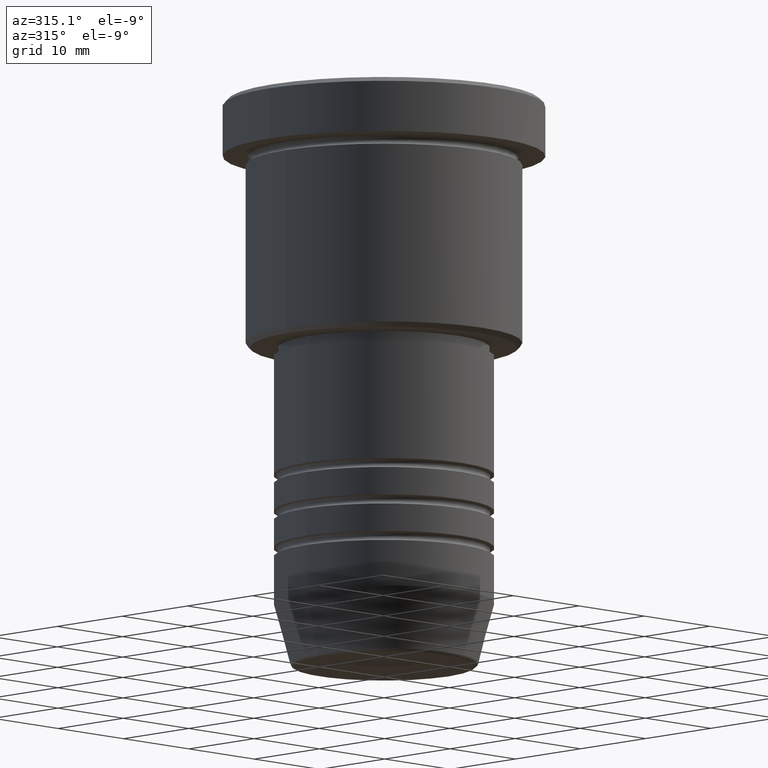
[diagram: clean part render]
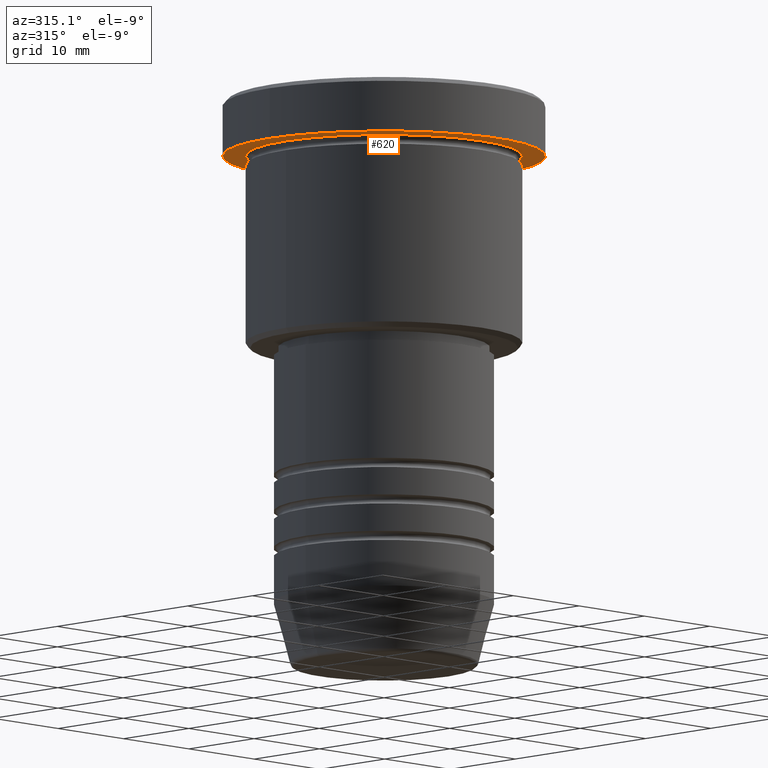
[diagram: same view with one face highlighted and labeled with its STEP entity id]
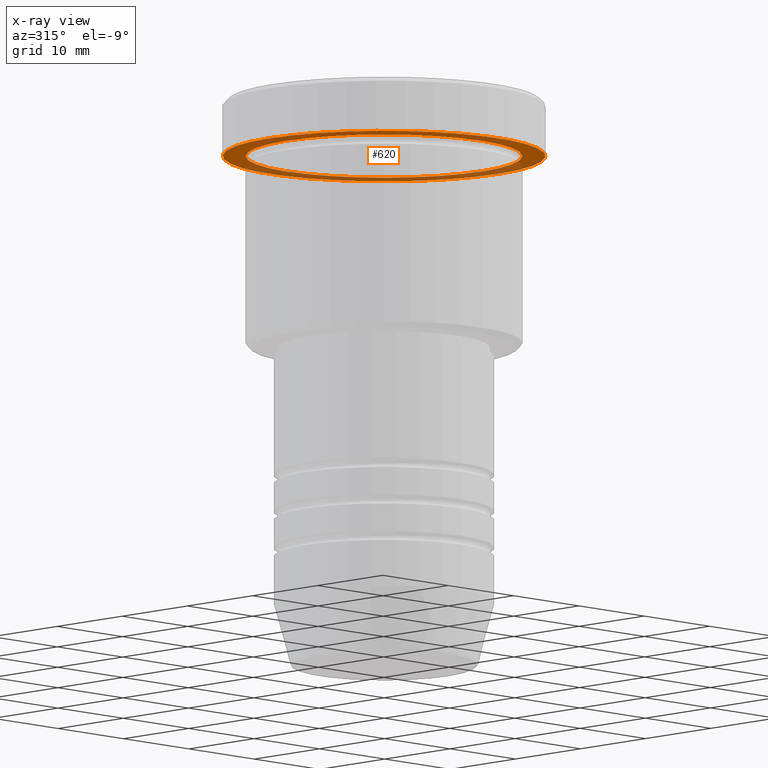
[diagram: x-ray of the same camera — body ghosted, the highlighted face saturated]
A machine part, auxiliary view. The second image highlights one B-rep face of the part: STEP entity #620.
The next image is the same camera in x-ray: the body ghosted, the highlighted face saturated — about 37% of this face is hidden behind the body in this view.
In plain terms, the highlighted planar face has unit normal (0, 0, -1).
Its self-contained STEP definition (entity closure, byte-faithful):
#2 = VERTEX_POINT ( 'NONE', #239 ) ;
#6 = AXIS2_PLACEMENT_3D ( 'NONE', #645, #1023, #465 ) ;
#17 = FACE_BOUND ( 'NONE', #987, .T. ) ;
#24 = CARTESIAN_POINT ( 'NONE',  ( 17.50000000000000000, 0.000000000000000000, -5.999999999999995559 ) ) ;
#48 = DIRECTION ( 'NONE',  ( 1.000000000000000000, 0.000000000000000000, 0.000000000000000000 ) ) ;
#50 = ORIENTED_EDGE ( 'NONE', *, *, #947, .F. ) ;
#104 = AXIS2_PLACEMENT_3D ( 'NONE', #1020, #217, #1126 ) ;
#115 = EDGE_LOOP ( 'NONE', ( #393, #50 ) ) ;
#116 = EDGE_CURVE ( 'NONE', #157, #814, #264, .T. ) ;
#127 = CARTESIAN_POINT ( 'NONE',  ( -17.50000000000000000, 2.143131898507868248E-15, -5.999999999999995559 ) ) ;
#157 = VERTEX_POINT ( 'NONE', #24 ) ;
#191 = CARTESIAN_POINT ( 'NONE',  ( 0.000000000000000000, 0.000000000000000000, -5.999999999999995559 ) ) ;
#217 = DIRECTION ( 'NONE',  ( 0.000000000000000000, 0.000000000000000000, -1.000000000000000000 ) ) ;
#231 = AXIS2_PLACEMENT_3D ( 'NONE', #191, #462, #289 ) ;
#239 = CARTESIAN_POINT ( 'NONE',  ( 15.00000000000000000, 1.836970198721029589E-15, -5.999999999999994671 ) ) ;
#264 = CIRCLE ( 'NONE', #6, 17.50000000000000000 ) ;
#278 = PLANE ( 'NONE',  #104 ) ;
#289 = DIRECTION ( 'NONE',  ( -1.000000000000000000, 0.000000000000000000, 0.000000000000000000 ) ) ;
#393 = ORIENTED_EDGE ( 'NONE', *, *, #116, .F. ) ;
#413 = CARTESIAN_POINT ( 'NONE',  ( 0.000000000000000000, 0.000000000000000000, -5.999999999999995559 ) ) ;
#455 = CIRCLE ( 'NONE', #671, 17.50000000000000000 ) ;
#462 = DIRECTION ( 'NONE',  ( -0.000000000000000000, -0.000000000000000000, 1.000000000000000000 ) ) ;
#465 = DIRECTION ( 'NONE',  ( 1.000000000000000000, 0.000000000000000000, 0.000000000000000000 ) ) ;
#468 = ORIENTED_EDGE ( 'NONE', *, *, #1047, .T. ) ;
#489 = CARTESIAN_POINT ( 'NONE',  ( 0.000000000000000000, 0.000000000000000000, -5.999999999999995559 ) ) ;
#606 = DIRECTION ( 'NONE',  ( -1.000000000000000000, 0.000000000000000000, 0.000000000000000000 ) ) ;
#620 = ADVANCED_FACE ( 'NONE', ( #17, #760 ), #278, .T. ) ;
#645 = CARTESIAN_POINT ( 'NONE',  ( 0.000000000000000000, 0.000000000000000000, -5.999999999999995559 ) ) ;
#671 = AXIS2_PLACEMENT_3D ( 'NONE', #489, #860, #48 ) ;
#699 = DIRECTION ( 'NONE',  ( -0.000000000000000000, -0.000000000000000000, 1.000000000000000000 ) ) ;
#733 = EDGE_CURVE ( 'NONE', #1058, #2, #1110, .T. ) ;
#748 = AXIS2_PLACEMENT_3D ( 'NONE', #413, #699, #606 ) ;
#760 = FACE_OUTER_BOUND ( 'NONE', #115, .T. ) ;
#814 = VERTEX_POINT ( 'NONE', #127 ) ;
#860 = DIRECTION ( 'NONE',  ( -0.000000000000000000, -0.000000000000000000, 1.000000000000000000 ) ) ;
#905 = CIRCLE ( 'NONE', #748, 15.00000000000000000 ) ;
#947 = EDGE_CURVE ( 'NONE', #814, #157, #455, .T. ) ;
#987 = EDGE_LOOP ( 'NONE', ( #1002, #468 ) ) ;
#998 = CARTESIAN_POINT ( 'NONE',  ( -15.00000000000000000, 0.000000000000000000, -5.999999999999994671 ) ) ;
#1002 = ORIENTED_EDGE ( 'NONE', *, *, #733, .T. ) ;
#1020 = CARTESIAN_POINT ( 'NONE',  ( 0.000000000000000000, 17.50000000000000000, -5.999999999999995559 ) ) ;
#1023 = DIRECTION ( 'NONE',  ( -0.000000000000000000, -0.000000000000000000, 1.000000000000000000 ) ) ;
#1047 = EDGE_CURVE ( 'NONE', #2, #1058, #905, .T. ) ;
#1058 = VERTEX_POINT ( 'NONE', #998 ) ;
#1110 = CIRCLE ( 'NONE', #231, 15.00000000000000000 ) ;
#1126 = DIRECTION ( 'NONE',  ( -1.000000000000000000, 0.000000000000000000, -0.000000000000000000 ) ) ;